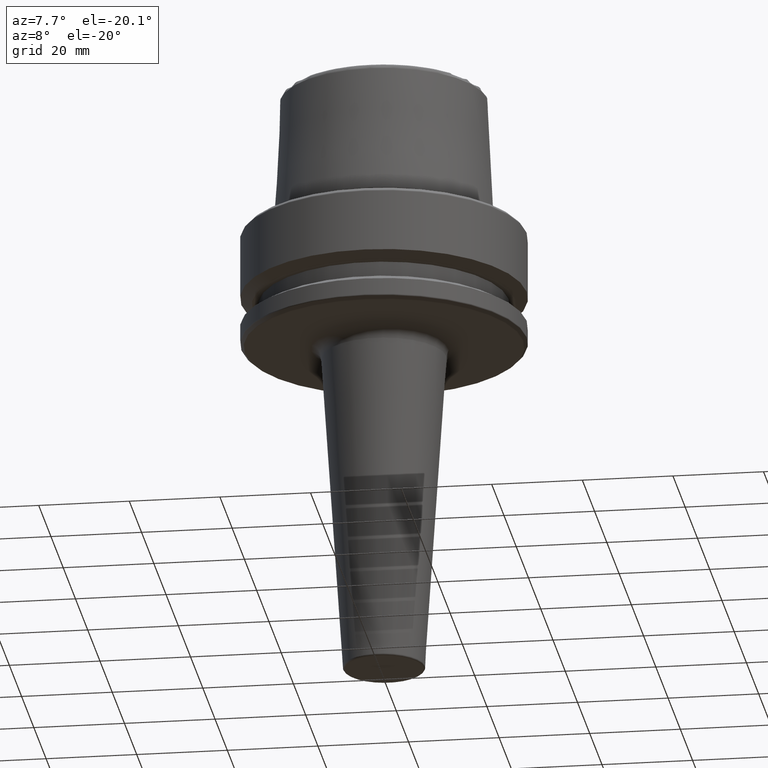
[diagram: clean part render]
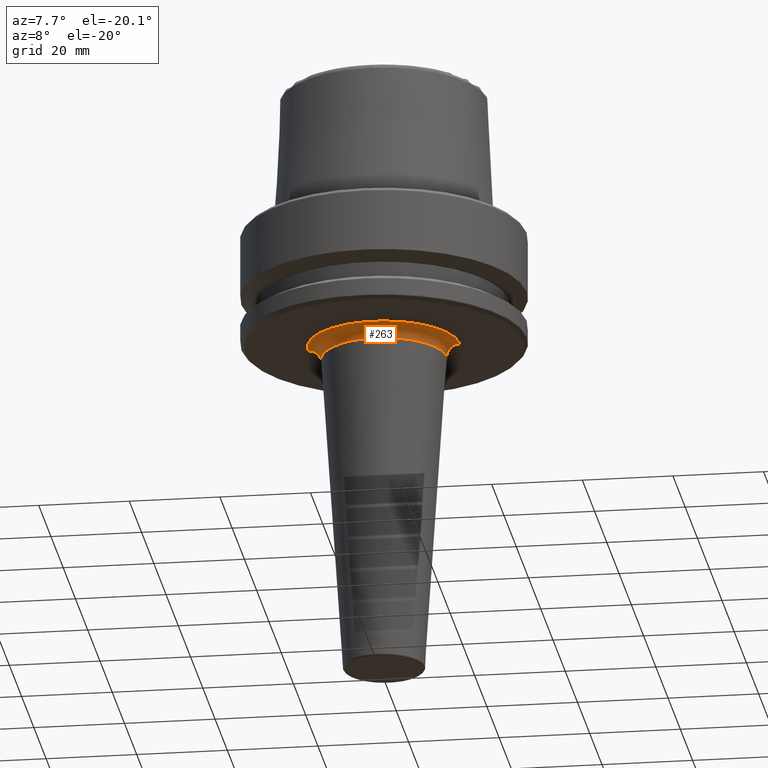
[diagram: same view with one face highlighted and labeled with its STEP entity id]
A machine part, auxiliary view. The second image highlights one B-rep face of the part: STEP entity #263.
In plain terms, the highlighted toroidal blend (fillet) surface has major radius 16.8067 mm and minor (blend) radius 3 mm.
Its self-contained STEP definition (entity closure, byte-faithful):
#14 = DIRECTION ( 'NONE',  ( 1.224646799147353200E-016, 1.000000000000000000, 0.0000000000000000000 ) ) ;
#26 = CIRCLE ( 'NONE', #1165, 13.81330380210474700 ) ;
#41 = CARTESIAN_POINT ( 'NONE',  ( 16.80665927567457300, 0.0000000000000000000, -29.00000000000000700 ) ) ;
#49 = EDGE_CURVE ( 'NONE', #79, #366, #812, .T. ) ;
#79 = VERTEX_POINT ( 'NONE', #742 ) ;
#80 = DIRECTION ( 'NONE',  ( 1.000000000000000000, 0.0000000000000000000, 0.0000000000000000000 ) ) ;
#89 = EDGE_CURVE ( 'NONE', #79, #374, #1016, .T. ) ;
#191 = DIRECTION ( 'NONE',  ( 0.0000000000000000000, 0.0000000000000000000, -1.000000000000000000 ) ) ;
#263 = ADVANCED_FACE ( 'NONE', ( #359 ), #613, .F. ) ;
#359 = FACE_OUTER_BOUND ( 'NONE', #1132, .T. ) ;
#366 = VERTEX_POINT ( 'NONE', #381 ) ;
#374 = VERTEX_POINT ( 'NONE', #578 ) ;
#381 = CARTESIAN_POINT ( 'NONE',  ( -13.81330380210474800, 1.691641828689754200E-015, -28.80044296842868700 ) ) ;
#426 = AXIS2_PLACEMENT_3D ( 'NONE', #41, #714, #191 ) ;
#540 = ORIENTED_EDGE ( 'NONE', *, *, #49, .T. ) ;
#543 = EDGE_CURVE ( 'NONE', #374, #1093, #738, .T. ) ;
#569 = DIRECTION ( 'NONE',  ( -0.0000000000000000000, -0.0000000000000000000, 1.000000000000000000 ) ) ;
#578 = CARTESIAN_POINT ( 'NONE',  ( 16.80665927567457300, 0.0000000000000000000, -26.00000000000001100 ) ) ;
#584 = CARTESIAN_POINT ( 'NONE',  ( -16.80665927567457300, 2.058222148631503600E-015, -29.00000000000000700 ) ) ;
#601 = DIRECTION ( 'NONE',  ( 1.000000000000000000, 0.0000000000000000000, 0.0000000000000000000 ) ) ;
#613 = TOROIDAL_SURFACE ( 'NONE', #804, 16.80665927567457300, 3.000000000000000000 ) ;
#630 = ORIENTED_EDGE ( 'NONE', *, *, #543, .F. ) ;
#654 = DIRECTION ( 'NONE',  ( -0.0000000000000000000, -0.0000000000000000000, -1.000000000000000000 ) ) ;
#682 = DIRECTION ( 'NONE',  ( -1.000000000000000000, 1.224646799147353500E-016, 0.0000000000000000000 ) ) ;
#714 = DIRECTION ( 'NONE',  ( 0.0000000000000000000, -1.000000000000000000, 0.0000000000000000000 ) ) ;
#736 = CARTESIAN_POINT ( 'NONE',  ( 13.81330380210474800, 0.0000000000000000000, -28.80044296842868700 ) ) ;
#738 = CIRCLE ( 'NONE', #426, 2.999999999999999100 ) ;
#742 = CARTESIAN_POINT ( 'NONE',  ( -16.80665927567457300, 2.058222148631503600E-015, -26.00000000000001100 ) ) ;
#767 = CARTESIAN_POINT ( 'NONE',  ( 0.0000000000000000000, 0.0000000000000000000, -29.00000000000000700 ) ) ;
#804 = AXIS2_PLACEMENT_3D ( 'NONE', #767, #1069, #601 ) ;
#812 = CIRCLE ( 'NONE', #1195, 2.999999999999999100 ) ;
#1016 = CIRCLE ( 'NONE', #1130, 16.80665927567457300 ) ;
#1035 = ORIENTED_EDGE ( 'NONE', *, *, #89, .F. ) ;
#1046 = EDGE_CURVE ( 'NONE', #1093, #366, #26, .T. ) ;
#1069 = DIRECTION ( 'NONE',  ( -0.0000000000000000000, -0.0000000000000000000, 1.000000000000000000 ) ) ;
#1093 = VERTEX_POINT ( 'NONE', #736 ) ;
#1130 = AXIS2_PLACEMENT_3D ( 'NONE', #1155, #569, #1261 ) ;
#1132 = EDGE_LOOP ( 'NONE', ( #1035, #540, #1176, #630 ) ) ;
#1155 = CARTESIAN_POINT ( 'NONE',  ( 0.0000000000000000000, 0.0000000000000000000, -26.00000000000001100 ) ) ;
#1165 = AXIS2_PLACEMENT_3D ( 'NONE', #1254, #654, #80 ) ;
#1176 = ORIENTED_EDGE ( 'NONE', *, *, #1046, .F. ) ;
#1195 = AXIS2_PLACEMENT_3D ( 'NONE', #584, #14, #682 ) ;
#1254 = CARTESIAN_POINT ( 'NONE',  ( 0.0000000000000000000, 0.0000000000000000000, -28.80044296842868700 ) ) ;
#1261 = DIRECTION ( 'NONE',  ( 1.000000000000000000, 0.0000000000000000000, 0.0000000000000000000 ) ) ;